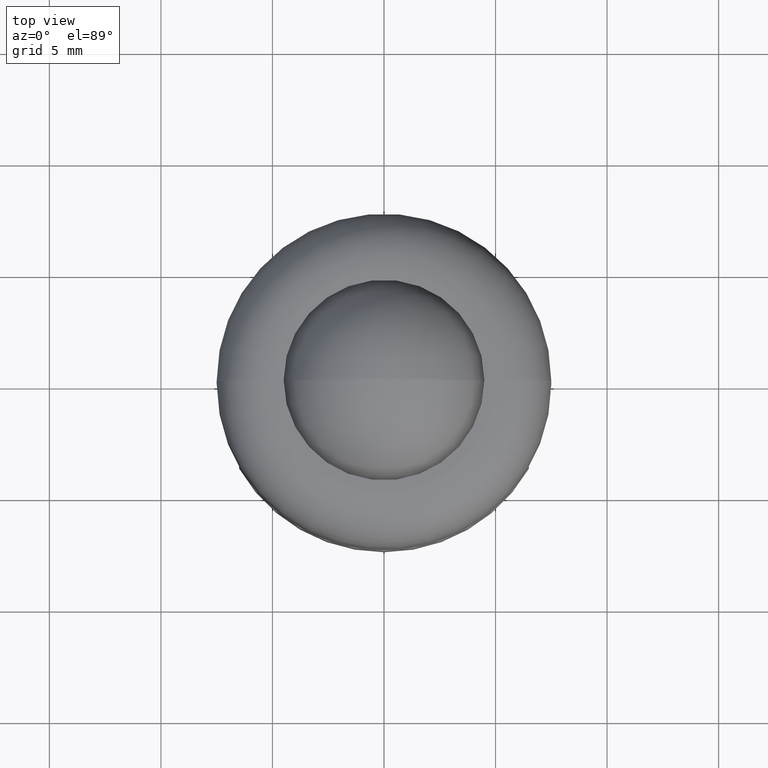
[diagram: clean part render]
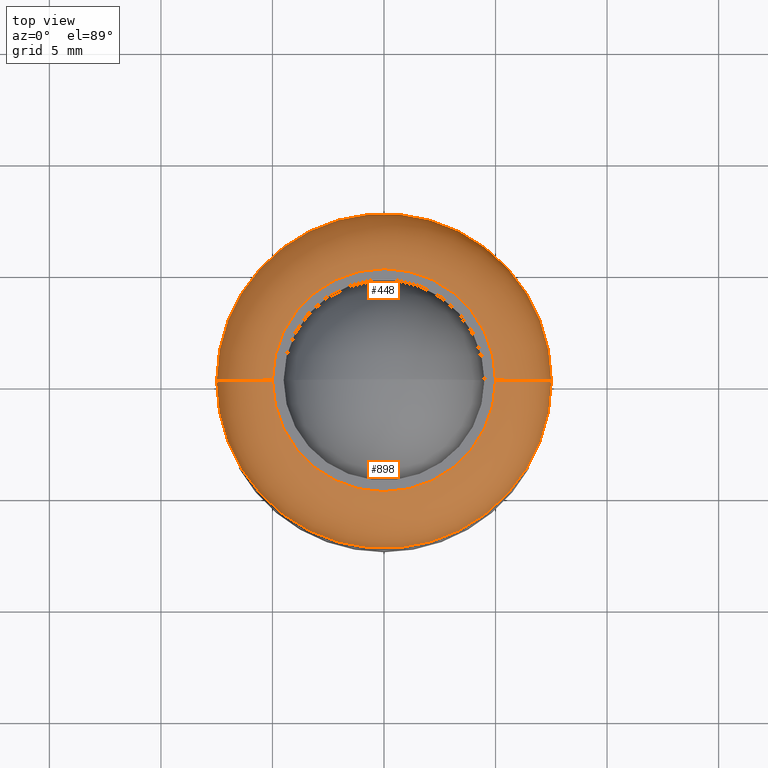
[diagram: same view with one multi-face feature highlighted, each face labeled with its STEP entity id]
A machine part, top view. The highlighted faces form ONE feature: a constant-radius fillet chain: 2 tangent blend faces with common blend radius 2.5 mm. The faces share edges in the B-rep.
Their STEP definitions:
[1] entity #448 (Torus):
#89 = ORIENTED_EDGE ( 'NONE', *, *, #848, .F. ) ;
#119 = AXIS2_PLACEMENT_3D ( 'NONE', #941, #875, #719 ) ;
#164 = AXIS2_PLACEMENT_3D ( 'NONE', #222, #861, #228 ) ;
#165 = AXIS2_PLACEMENT_3D ( 'NONE', #265, #271, #764 ) ;
#175 = CARTESIAN_POINT ( 'NONE',  ( 7.500000000000000000, 9.184850993605147900E-016, 6.500000000000000000 ) ) ;
#176 = DIRECTION ( 'NONE',  ( -0.0000000000000000000, -1.000000000000000000, -0.0000000000000000000 ) ) ;
#222 = CARTESIAN_POINT ( 'NONE',  ( 0.0000000000000000000, 0.0000000000000000000, 6.500000000000000000 ) ) ;
#228 = DIRECTION ( 'NONE',  ( -1.000000000000000000, 0.0000000000000000000, 0.0000000000000000000 ) ) ;
#265 = CARTESIAN_POINT ( 'NONE',  ( 0.0000000000000000000, 0.0000000000000000000, 6.500000000000000000 ) ) ;
#271 = DIRECTION ( 'NONE',  ( 0.0000000000000000000, 0.0000000000000000000, -1.000000000000000000 ) ) ;
#297 = VERTEX_POINT ( 'NONE', #816 ) ;
#390 = CIRCLE ( 'NONE', #165, 7.500000000000000000 ) ;
#429 = FACE_OUTER_BOUND ( 'NONE', #851, .T. ) ;
#448 = ADVANCED_FACE ( 'NONE', ( #429 ), #464, .T. ) ;
#464 = TOROIDAL_SURFACE ( 'NONE', #164, 5.000000000000000000, 2.500000000000000000 ) ;
#465 = EDGE_CURVE ( 'NONE', #297, #621, #602, .T. ) ;
#472 = VERTEX_POINT ( 'NONE', #576 ) ;
#491 = CARTESIAN_POINT ( 'NONE',  ( -5.000000000000000000, 0.0000000000000000000, 6.500000000000000000 ) ) ;
#558 = CARTESIAN_POINT ( 'NONE',  ( -7.500000000000000000, 0.0000000000000000000, 6.500000000000000000 ) ) ;
#569 = AXIS2_PLACEMENT_3D ( 'NONE', #491, #176, #830 ) ;
#576 = CARTESIAN_POINT ( 'NONE',  ( -5.000000000000000000, 0.0000000000000000000, 9.000000000000000000 ) ) ;
#580 = ORIENTED_EDGE ( 'NONE', *, *, #940, .T. ) ;
#585 = VERTEX_POINT ( 'NONE', #558 ) ;
#602 = CIRCLE ( 'NONE', #119, 2.500000000000000000 ) ;
#621 = VERTEX_POINT ( 'NONE', #175 ) ;
#681 = CIRCLE ( 'NONE', #703, 5.000000000000000000 ) ;
#685 = ORIENTED_EDGE ( 'NONE', *, *, #465, .T. ) ;
#695 = DIRECTION ( 'NONE',  ( -1.000000000000000000, 0.0000000000000000000, 0.0000000000000000000 ) ) ;
#703 = AXIS2_PLACEMENT_3D ( 'NONE', #772, #918, #695 ) ;
#719 = DIRECTION ( 'NONE',  ( -1.000000000000000000, -1.224646799147353200E-016, 0.0000000000000000000 ) ) ;
#764 = DIRECTION ( 'NONE',  ( -1.000000000000000000, 0.0000000000000000000, 0.0000000000000000000 ) ) ;
#772 = CARTESIAN_POINT ( 'NONE',  ( 0.0000000000000000000, 0.0000000000000000000, 9.000000000000000000 ) ) ;
#816 = CARTESIAN_POINT ( 'NONE',  ( 5.000000000000000000, 7.654042494670956600E-016, 9.000000000000000000 ) ) ;
#830 = DIRECTION ( 'NONE',  ( 0.0000000000000000000, 0.0000000000000000000, -1.000000000000000000 ) ) ;
#845 = ORIENTED_EDGE ( 'NONE', *, *, #952, .F. ) ;
#848 = EDGE_CURVE ( 'NONE', #585, #621, #390, .T. ) ;
#851 = EDGE_LOOP ( 'NONE', ( #580, #685, #89, #845 ) ) ;
#861 = DIRECTION ( 'NONE',  ( 0.0000000000000000000, 0.0000000000000000000, -1.000000000000000000 ) ) ;
#875 = DIRECTION ( 'NONE',  ( -1.224646799147353200E-016, 1.000000000000000000, 0.0000000000000000000 ) ) ;
#876 = CIRCLE ( 'NONE', #569, 2.499999999999999600 ) ;
#918 = DIRECTION ( 'NONE',  ( 0.0000000000000000000, 0.0000000000000000000, -1.000000000000000000 ) ) ;
#940 = EDGE_CURVE ( 'NONE', #472, #297, #681, .T. ) ;
#941 = CARTESIAN_POINT ( 'NONE',  ( 5.000000000000000000, 6.123233995736766300E-016, 6.500000000000000000 ) ) ;
#952 = EDGE_CURVE ( 'NONE', #472, #585, #876, .T. ) ;
[2] entity #898 (Torus):
#104 = DIRECTION ( 'NONE',  ( -1.000000000000000000, 0.0000000000000000000, 0.0000000000000000000 ) ) ;
#114 = DIRECTION ( 'NONE',  ( 0.0000000000000000000, 0.0000000000000000000, -1.000000000000000000 ) ) ;
#119 = AXIS2_PLACEMENT_3D ( 'NONE', #941, #875, #719 ) ;
#152 = AXIS2_PLACEMENT_3D ( 'NONE', #822, #900, #104 ) ;
#175 = CARTESIAN_POINT ( 'NONE',  ( 7.500000000000000000, 9.184850993605147900E-016, 6.500000000000000000 ) ) ;
#176 = DIRECTION ( 'NONE',  ( -0.0000000000000000000, -1.000000000000000000, -0.0000000000000000000 ) ) ;
#209 = ORIENTED_EDGE ( 'NONE', *, *, #515, .T. ) ;
#239 = ORIENTED_EDGE ( 'NONE', *, *, #952, .T. ) ;
#262 = DIRECTION ( 'NONE',  ( -1.000000000000000000, 0.0000000000000000000, 0.0000000000000000000 ) ) ;
#297 = VERTEX_POINT ( 'NONE', #816 ) ;
#343 = CARTESIAN_POINT ( 'NONE',  ( 0.0000000000000000000, 0.0000000000000000000, 9.000000000000000000 ) ) ;
#369 = AXIS2_PLACEMENT_3D ( 'NONE', #909, #114, #262 ) ;
#371 = FACE_OUTER_BOUND ( 'NONE', #872, .T. ) ;
#444 = AXIS2_PLACEMENT_3D ( 'NONE', #343, #769, #696 ) ;
#465 = EDGE_CURVE ( 'NONE', #297, #621, #602, .T. ) ;
#472 = VERTEX_POINT ( 'NONE', #576 ) ;
#491 = CARTESIAN_POINT ( 'NONE',  ( -5.000000000000000000, 0.0000000000000000000, 6.500000000000000000 ) ) ;
#515 = EDGE_CURVE ( 'NONE', #297, #472, #744, .T. ) ;
#552 = ORIENTED_EDGE ( 'NONE', *, *, #465, .F. ) ;
#558 = CARTESIAN_POINT ( 'NONE',  ( -7.500000000000000000, 0.0000000000000000000, 6.500000000000000000 ) ) ;
#569 = AXIS2_PLACEMENT_3D ( 'NONE', #491, #176, #830 ) ;
#576 = CARTESIAN_POINT ( 'NONE',  ( -5.000000000000000000, 0.0000000000000000000, 9.000000000000000000 ) ) ;
#585 = VERTEX_POINT ( 'NONE', #558 ) ;
#602 = CIRCLE ( 'NONE', #119, 2.500000000000000000 ) ;
#621 = VERTEX_POINT ( 'NONE', #175 ) ;
#669 = CIRCLE ( 'NONE', #152, 7.500000000000000000 ) ;
#696 = DIRECTION ( 'NONE',  ( -1.000000000000000000, 0.0000000000000000000, 0.0000000000000000000 ) ) ;
#719 = DIRECTION ( 'NONE',  ( -1.000000000000000000, -1.224646799147353200E-016, 0.0000000000000000000 ) ) ;
#720 = TOROIDAL_SURFACE ( 'NONE', #369, 5.000000000000000000, 2.500000000000000000 ) ;
#744 = CIRCLE ( 'NONE', #444, 5.000000000000000000 ) ;
#769 = DIRECTION ( 'NONE',  ( 0.0000000000000000000, 0.0000000000000000000, -1.000000000000000000 ) ) ;
#816 = CARTESIAN_POINT ( 'NONE',  ( 5.000000000000000000, 7.654042494670956600E-016, 9.000000000000000000 ) ) ;
#821 = EDGE_CURVE ( 'NONE', #621, #585, #669, .T. ) ;
#822 = CARTESIAN_POINT ( 'NONE',  ( 0.0000000000000000000, 0.0000000000000000000, 6.500000000000000000 ) ) ;
#830 = DIRECTION ( 'NONE',  ( 0.0000000000000000000, 0.0000000000000000000, -1.000000000000000000 ) ) ;
#872 = EDGE_LOOP ( 'NONE', ( #552, #209, #239, #927 ) ) ;
#875 = DIRECTION ( 'NONE',  ( -1.224646799147353200E-016, 1.000000000000000000, 0.0000000000000000000 ) ) ;
#876 = CIRCLE ( 'NONE', #569, 2.499999999999999600 ) ;
#898 = ADVANCED_FACE ( 'NONE', ( #371 ), #720, .T. ) ;
#900 = DIRECTION ( 'NONE',  ( 0.0000000000000000000, 0.0000000000000000000, -1.000000000000000000 ) ) ;
#909 = CARTESIAN_POINT ( 'NONE',  ( 0.0000000000000000000, 0.0000000000000000000, 6.500000000000000000 ) ) ;
#927 = ORIENTED_EDGE ( 'NONE', *, *, #821, .F. ) ;
#941 = CARTESIAN_POINT ( 'NONE',  ( 5.000000000000000000, 6.123233995736766300E-016, 6.500000000000000000 ) ) ;
#952 = EDGE_CURVE ( 'NONE', #472, #585, #876, .T. ) ;